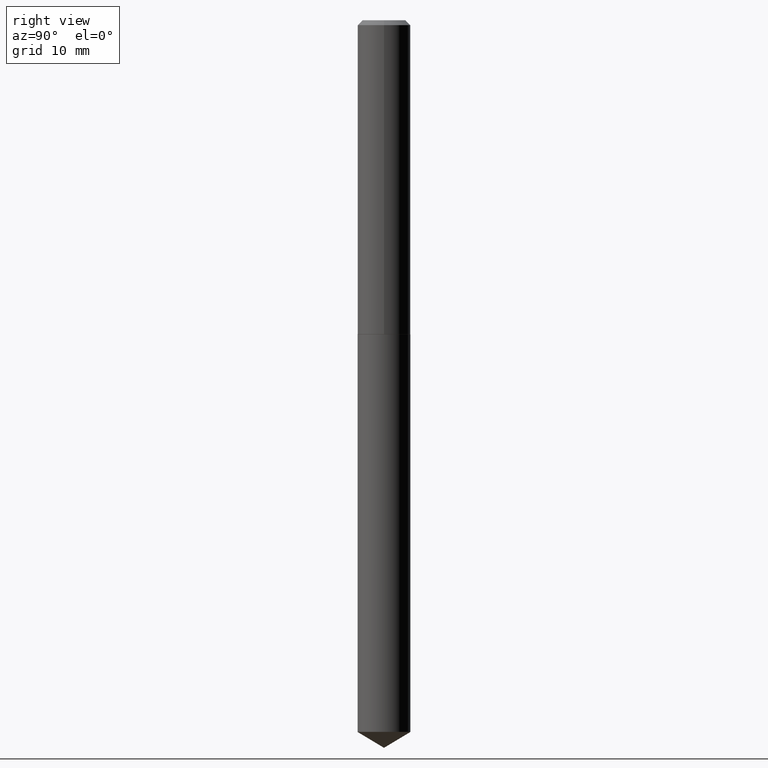
[diagram: clean part render]
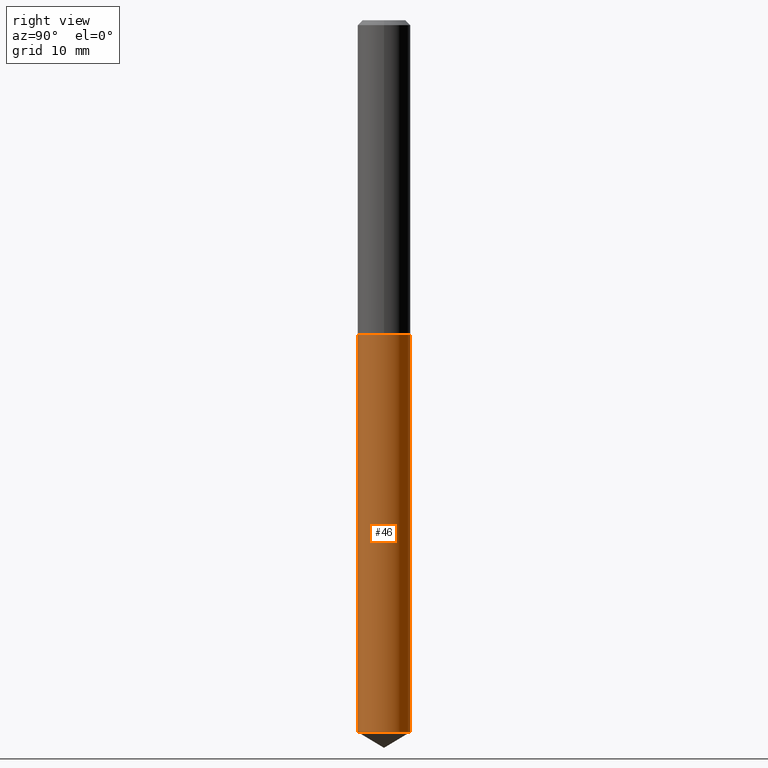
[diagram: same view with one face highlighted and labeled with its STEP entity id]
A machine part, right view. The second image highlights one B-rep face of the part: STEP entity #46.
In plain terms, the highlighted cylindrical surface (edge-blend (fillet) strip) has radius 4.2494 mm, axis along (-0, 0, 1).
Its self-contained STEP definition (entity closure, byte-faithful):
#1 = CARTESIAN_POINT ( 'NONE',  ( 1.188737996926758082E-15, 0.1672999999999930931, -1.988100000000000644 ) ) ;
#31 = DIRECTION ( 'NONE',  ( -6.982962677686266711E-15, -1.000000000000000000, 3.265807523806650431E-15 ) ) ;
#33 = VECTOR ( 'NONE', #83, 39.37007874015748143 ) ;
#46 = ADVANCED_FACE ( 'NONE', ( #198 ), #109, .T. ) ;
#52 = ORIENTED_EDGE ( 'NONE', *, *, #300, .T. ) ;
#54 = DIRECTION ( 'NONE',  ( -2.445221730653592227E-29, 3.491835165066983008E-15, 1.000000000000000000 ) ) ;
#55 = DIRECTION ( 'NONE',  ( -2.445221730653592227E-29, 3.491835165066983008E-15, 1.000000000000000000 ) ) ;
#57 = DIRECTION ( 'NONE',  ( -2.445221730653592227E-29, 3.491835165066983008E-15, 1.000000000000000000 ) ) ;
#59 = CARTESIAN_POINT ( 'NONE',  ( 4.861836533576670348E-29, -6.941414049754057803E-15, -1.988099999999999978 ) ) ;
#66 = EDGE_LOOP ( 'NONE', ( #52, #238, #236, #377 ) ) ;
#70 = VERTEX_POINT ( 'NONE', #1 ) ;
#81 = LINE ( 'NONE', #324, #246 ) ;
#83 = DIRECTION ( 'NONE',  ( -2.445221730653592227E-29, 3.491835165066983008E-15, 1.000000000000000000 ) ) ;
#108 = CARTESIAN_POINT ( 'NONE',  ( -1.168249655976802346E-15, -0.1673000000000157694, -4.505776018436688624 ) ) ;
#109 = CYLINDRICAL_SURFACE ( 'NONE', #365, 0.1673000000000000043 ) ;
#115 = CARTESIAN_POINT ( 'NONE',  ( 1.188737996926757687E-15, 0.1672999999999842669, -4.505776018436689512 ) ) ;
#121 = VERTEX_POINT ( 'NONE', #108 ) ;
#143 = DIRECTION ( 'NONE',  ( -6.982962677686266711E-15, -1.000000000000000000, 3.265807523806650431E-15 ) ) ;
#150 = CIRCLE ( 'NONE', #280, 0.1673000000000000043 ) ;
#163 = CARTESIAN_POINT ( 'NONE',  ( 4.861836533576670348E-29, -6.941414049754057803E-15, -1.988099999999999978 ) ) ;
#167 = CARTESIAN_POINT ( 'NONE',  ( 1.101811264460347763E-28, -1.573272370517711890E-14, -4.505776018436689512 ) ) ;
#170 = EDGE_CURVE ( 'NONE', #298, #70, #150, .T. ) ;
#198 = FACE_OUTER_BOUND ( 'NONE', #66, .T. ) ;
#213 = VERTEX_POINT ( 'NONE', #115 ) ;
#225 = DIRECTION ( 'NONE',  ( -6.982962677686266711E-15, -1.000000000000000000, 3.265807523806650431E-15 ) ) ;
#236 = ORIENTED_EDGE ( 'NONE', *, *, #170, .F. ) ;
#238 = ORIENTED_EDGE ( 'NONE', *, *, #247, .T. ) ;
#239 = EDGE_CURVE ( 'NONE', #121, #298, #81, .T. ) ;
#243 = CIRCLE ( 'NONE', #331, 0.1673000000000000043 ) ;
#246 = VECTOR ( 'NONE', #55, 39.37007874015748143 ) ;
#247 = EDGE_CURVE ( 'NONE', #213, #70, #364, .T. ) ;
#257 = CARTESIAN_POINT ( 'NONE',  ( -1.168249655976863877E-15, -0.1673000000000069432, -1.988099999999999534 ) ) ;
#280 = AXIS2_PLACEMENT_3D ( 'NONE', #163, #57, #225 ) ;
#294 = DIRECTION ( 'NONE',  ( -2.445221730653592227E-29, 3.491835165066983008E-15, 1.000000000000000000 ) ) ;
#298 = VERTEX_POINT ( 'NONE', #257 ) ;
#300 = EDGE_CURVE ( 'NONE', #121, #213, #243, .T. ) ;
#324 = CARTESIAN_POINT ( 'NONE',  ( -1.168249655976863877E-15, -0.1673000000000069432, -1.988099999999999534 ) ) ;
#331 = AXIS2_PLACEMENT_3D ( 'NONE', #167, #294, #143 ) ;
#361 = CARTESIAN_POINT ( 'NONE',  ( 1.188737996926695959E-15, 0.1672999999999930931, -1.988100000000000644 ) ) ;
#364 = LINE ( 'NONE', #361, #33 ) ;
#365 = AXIS2_PLACEMENT_3D ( 'NONE', #59, #54, #31 ) ;
#377 = ORIENTED_EDGE ( 'NONE', *, *, #239, .F. ) ;